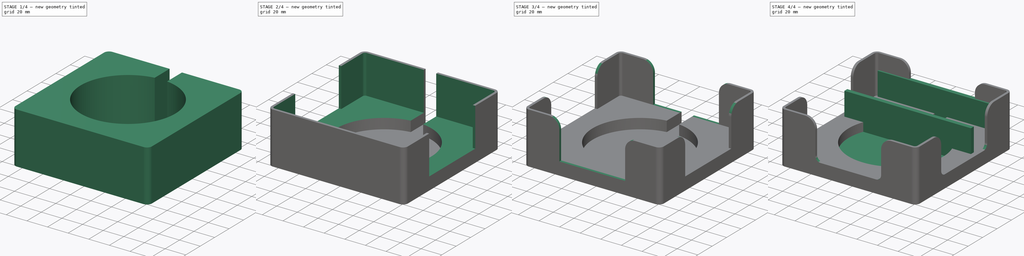
[diagram: build sequence overview — one tinted view per stage of 4, left to right]
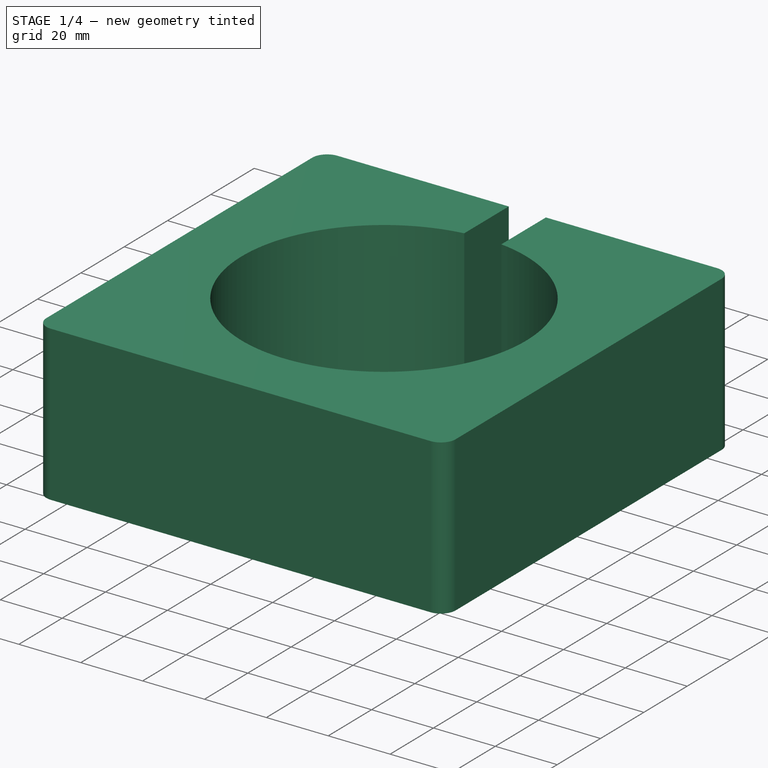
[diagram: stage 1 of 4 — iso view after this stage's code; geometry added in this stage tinted green]
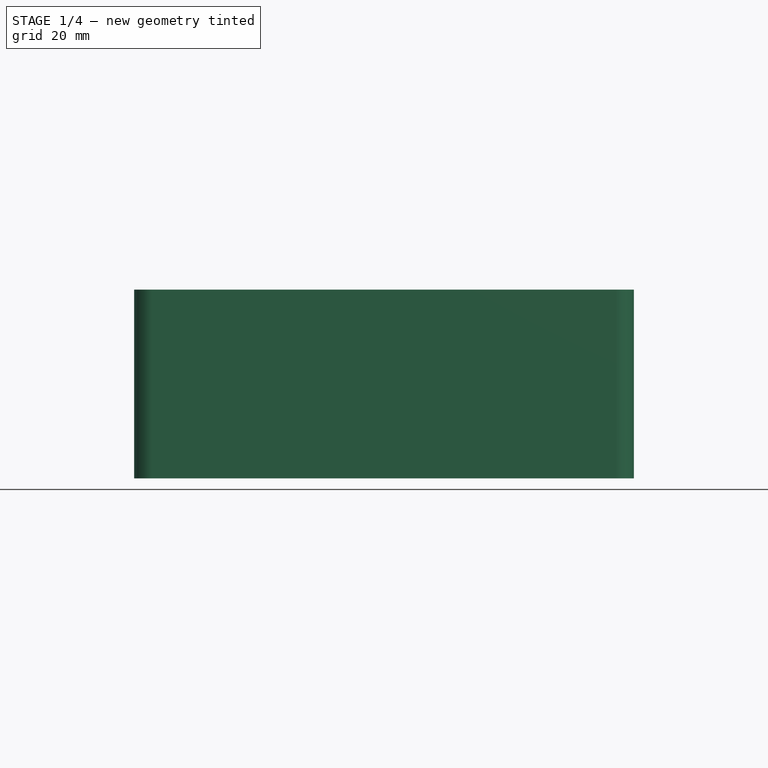
[diagram: stage 1 of 4 — front view after this stage's code; geometry added in this stage tinted green]
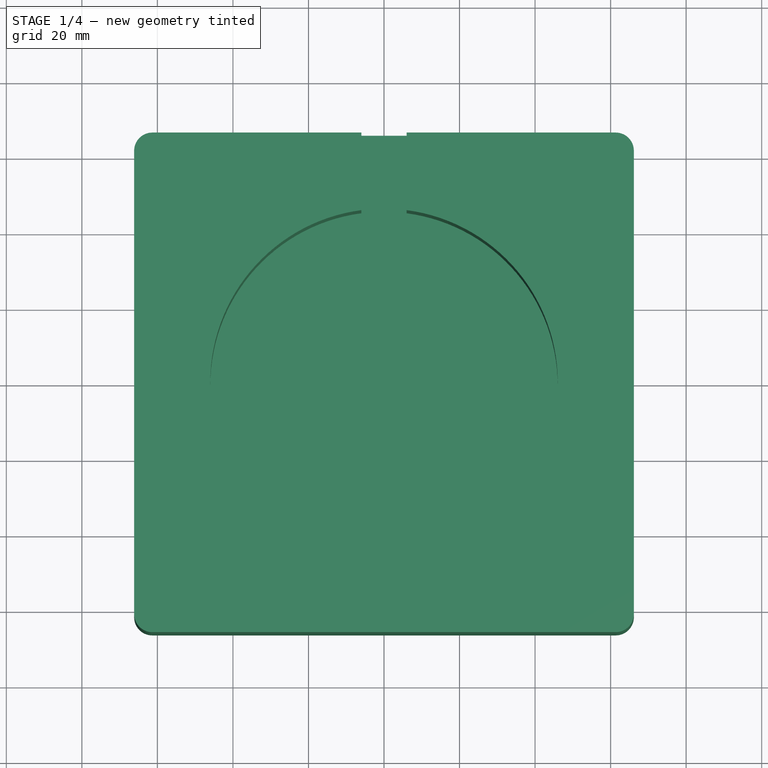
[diagram: stage 1 of 4 — top view after this stage's code; geometry added in this stage tinted green]
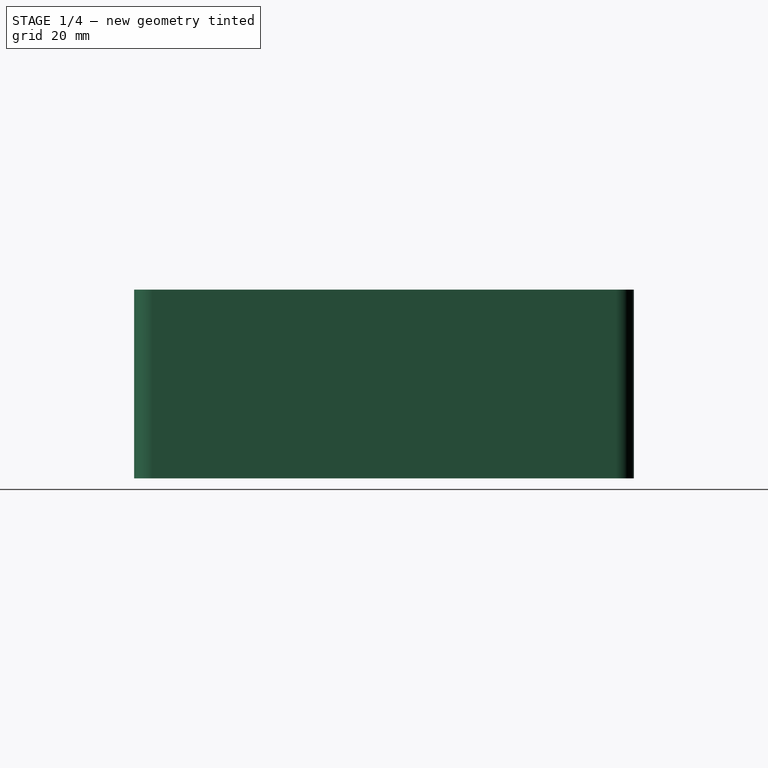
[diagram: stage 1 of 4 — right view after this stage's code; geometry added in this stage tinted green]
FCSTD DOCUMENT  (FreeCAD 0.20RUnknown)
Label: tonie_box_holder
License: All rights reserved
LicenseURL: http://en.wikipedia.org/wiki/All_rights_reserved
objects: Sketcher::SketchObject×9, PartDesign::Pocket×6, PartDesign::Pad×3, PartDesign::Body×2, PartDesign::Fillet×2, Spreadsheet::Sheet×1
note: 33 computed .brp shape members not serialized (recipe doc carries the construction recipe); baked Part::Feature solids carry a one-line shape summary decoded from their .brp

FEATURE [Spreadsheet::Sheet] Spreadsheet  label="params"
  cells = A1=tonie_box_size; B1(tonie_box_size)=127.5; A2=charger_bottom_dia; B2(charger_bottom_dia)=92; A3=charger_bottom_height; B3(charger_bottom_height)=10; A4=charger_cable_shaft_width; B4(charger_cable_shaft_width)=12; A5=wall_width; B5(wall_width)=2.4; A6=total_height; B6(total_height)=50; A7=inset_m3_depth; B7(inset_m3_depth)=5; A8=inset_m3_drill_dia; B8(inset_m3_drill_dia)=4; A9=inset_rect_size; B9(inset_rect_size)=100; A10=table_depth; B10(table_depth)=4; A11=table_support_gap; B11(table_support_gap)=42; A12=table_support_width; B12(table_support_width)=4; A13=table_support_depth; B13(table_support_depth)=35
FEATURE [Sketcher::SketchObject] Sketch
  FullyConstrained = true
  MapMode = 5
  Support = -> [XY_Plane]
  expr: Constraints[19] = <<params>>.tonie_box_size + <<params>>.wall_width * 2
  expr: Constraints[20] = <<params>>.tonie_box_size + 2 * <<params>>.wall_width
  expr: Constraints[21] = <<params>>.tonie_box_size / 2 + <<params>>.wall_width
  expr: Constraints[22] = <<params>>.tonie_box_size / 2 + <<params>>.wall_width
  sketch-geometry (10):
    g0: ArcOfCircle CenterX=-61.35 CenterY=61.35 CenterZ=0 NormalX=0 NormalY=0 NormalZ=1 AngleXU=0 Radius=4.8 StartAngle=1.5708 EndAngle=3.14159
    g1: LineSegment StartX=-61.35 StartY=66.15 StartZ=0 EndX=61.35 EndY=66.15 EndZ=0
    g2: ArcOfCircle CenterX=61.35 CenterY=61.35 CenterZ=0 NormalX=0 NormalY=0 NormalZ=1 AngleXU=0 Radius=4.8 StartAngle=0 EndAngle=1.5708
    g3: LineSegment StartX=66.15 StartY=61.35 StartZ=0 EndX=66.15 EndY=-61.35 EndZ=0
    g4: ArcOfCircle CenterX=61.35 CenterY=-61.35 CenterZ=0 NormalX=0 NormalY=0 NormalZ=1 AngleXU=0 Radius=4.8 StartAngle=4.71239 EndAngle=6.28319
    g5: LineSegment StartX=61.35 StartY=-66.15 StartZ=0 EndX=-61.35 EndY=-66.15 EndZ=0
    g6: ArcOfCircle CenterX=-61.35 CenterY=-61.35 CenterZ=0 NormalX=0 NormalY=0 NormalZ=1 AngleXU=0 Radius=4.8 StartAngle=3.14159 EndAngle=4.71239
    g7: LineSegment StartX=-66.15 StartY=-61.35 StartZ=0 EndX=-66.15 EndY=61.35 EndZ=0
    g8: GeomPoint X=-66.15 Y=66.15 Z=0
    g9: GeomPoint X=66.15 Y=-66.15 Z=0
  constraints (24):
    c: Tangent(g0,g1) = 1.5708
    c: Tangent(g1,g2) = 1.5708
    c: Tangent(g2,g3) = 1.5708
    c: Tangent(g3,g4) = 1.5708
    c: Tangent(g4,g5) = 1.5708
    c: Tangent(g5,g6) = 1.5708
    c: Tangent(g6,g7) = 1.5708
    c: Tangent(g7,g0) = 1.5708
    c: Horizontal(g1)
    c: Horizontal(g5)
    c: Vertical(g3)
    c: Vertical(g7)
    c: Equal(g0,g2)
    c: Equal(g2,g4)
    c: Equal(g4,g6)
    c: PointOnObject(g8,g1)
    c: PointOnObject(g8,g7)
    c: PointOnObject(g9,g3)
    c: PointOnObject(g9,g5)
    c: DistanceX(g0,g2) = 132.3
    c: DistanceY(g4,g1) = 132.3
    c: DistanceX(g6,g-1) = 66.15
    c: DistanceY(g-1,g1) = 66.15
    c: DistanceY(g5,g6) = 4.8
FEATURE [PartDesign::Pad] Pad  label="main_block"
  Direction = (0,0,1)
  Length = 50
  Length2 = 10
  Profile = -> Sketch
  ReferenceAxis = -> Sketch [N_Axis]
  Type = 0
  expr: Length = <<params>>.total_height
FEATURE [Sketcher::SketchObject] Sketch001
  AttachmentOffset = pos=(0,0,2.4) rot=(0,0,1;0rad)
  FullyConstrained = true
  MapMode = 5
  Placement = pos=(0,0,2.4) rot=(0,0,1;0rad)
  Support = -> [XY_Plane]
  expr: .AttachmentOffset.Base.z = <<params>>.wall_width
  expr: Constraints[1] = <<params>>.charger_bottom_dia
  sketch-geometry (1):
    g0: Circle CenterX=0 CenterY=0 CenterZ=0 NormalX=0 NormalY=0 NormalZ=1 AngleXU=0 Radius=46
  constraints (2):
    c: Coincident(g0,g-1)
    c: Diameter(g0) = 92
FEATURE [PartDesign::Pocket] Pocket  label="charger_cutout"
  BaseFeature = -> Pad
  Direction = (0,0,-1)
  Length = 5
  Length2 = 5
  Profile = -> Sketch001
  ReferenceAxis = -> Sketch001 [N_Axis]
  Reversed = true
  Type = 1
FEATURE [Sketcher::SketchObject] Sketch002
  AttachmentOffset = pos=(0,0,2.4) rot=(0,0,1;0rad)
  FullyConstrained = true
  MapMode = 5
  Placement = pos=(0,0,2.4) rot=(0,0,1;0rad)
  Support = -> [XY_Plane]
  expr: .AttachmentOffset.Base.z = <<params>>.wall_width
  expr: Constraints[10] = <<params>>.tonie_box_size / 2 + <<params>>.wall_width
  expr: Constraints[11] = <<params>>.charger_cable_shaft_width / 2
  expr: Constraints[9] = <<params>>.charger_cable_shaft_width
  sketch-geometry (4):
    g0: LineSegment StartX=-6 StartY=0 StartZ=0 EndX=6 EndY=0 EndZ=0
    g1: LineSegment StartX=6 StartY=0 StartZ=0 EndX=6 EndY=66.15 EndZ=0
    g2: LineSegment StartX=6 StartY=66.15 StartZ=0 EndX=-6 EndY=66.15 EndZ=0
    g3: LineSegment StartX=-6 StartY=66.15 StartZ=0 EndX=-6 EndY=0 EndZ=0
  constraints (12):
    c: Coincident(g0,g1)
    c: Coincident(g1,g2)
    c: Coincident(g2,g3)
    c: Coincident(g3,g0)
    c: Horizontal(g0)
    c: Horizontal(g2)
    c: Vertical(g1)
    c: Vertical(g3)
    c: PointOnObject(g0,g-1)
    c: DistanceX(g2,g1) = 12
    c: DistanceY(g0,g1) = 66.15
    c: DistanceX(g-1,g0) = 6
FEATURE [PartDesign::Pocket] Pocket001  label="cable_shaft_cutout"
  BaseFeature = -> Pocket
  Direction = (0,0,-1)
  Length = 5
  Length2 = 5
  Profile = -> Sketch002
  ReferenceAxis = -> Sketch002 [N_Axis]
  Reversed = true
  Type = 1
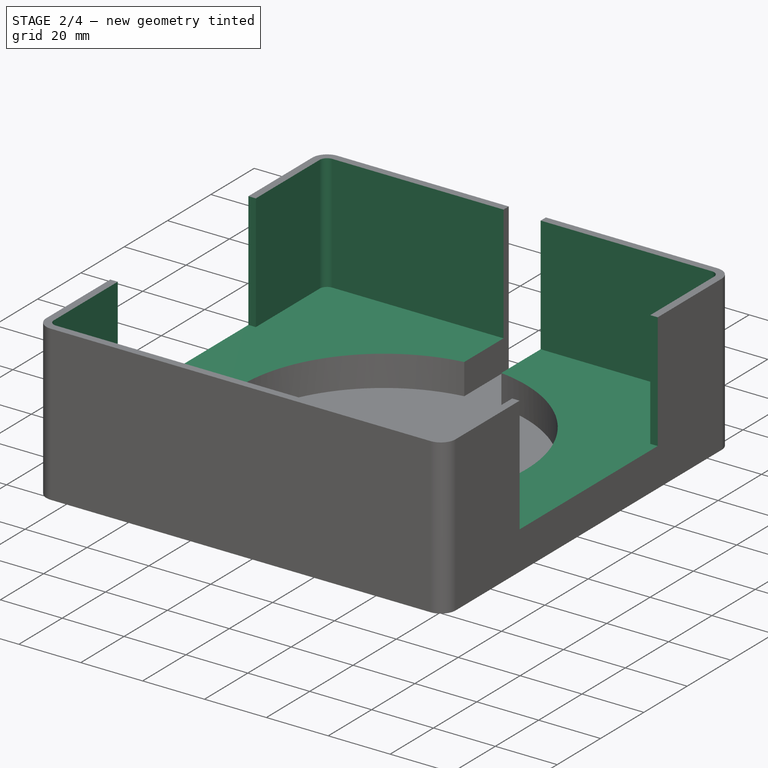
[diagram: stage 2 of 4 — iso view after this stage's code; geometry added in this stage tinted green]
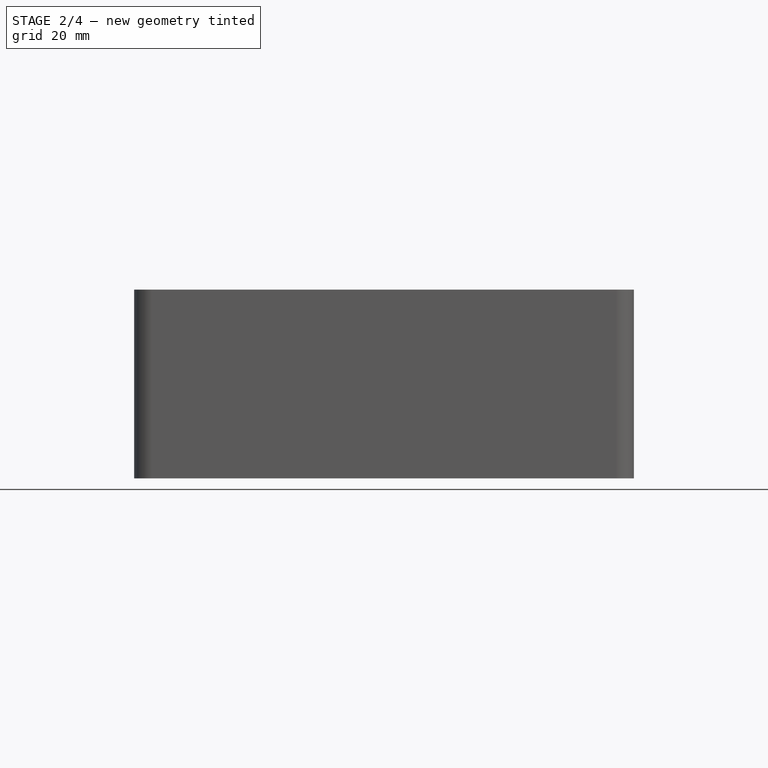
[diagram: stage 2 of 4 — front view after this stage's code; geometry added in this stage tinted green]
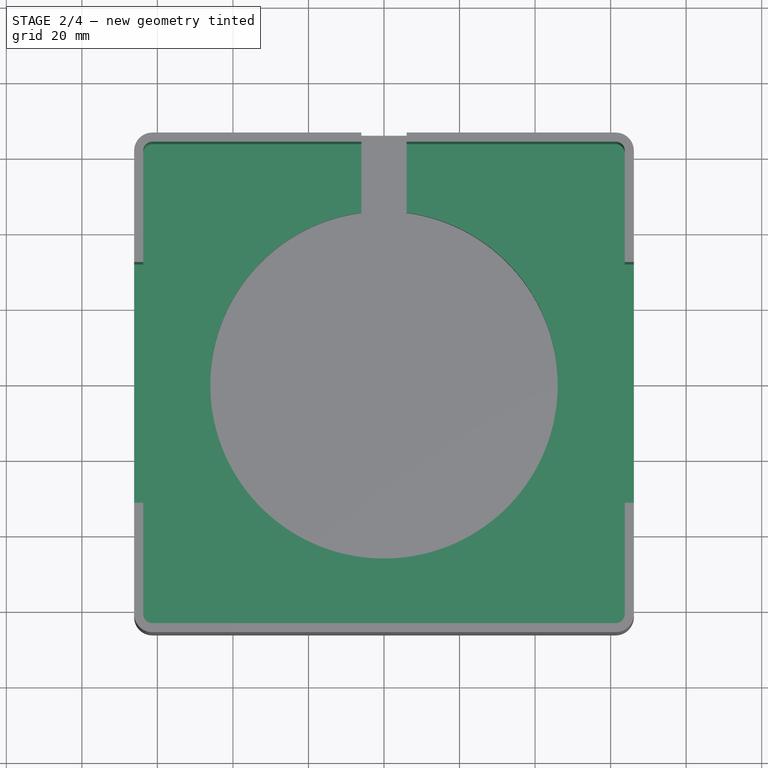
[diagram: stage 2 of 4 — top view after this stage's code; geometry added in this stage tinted green]
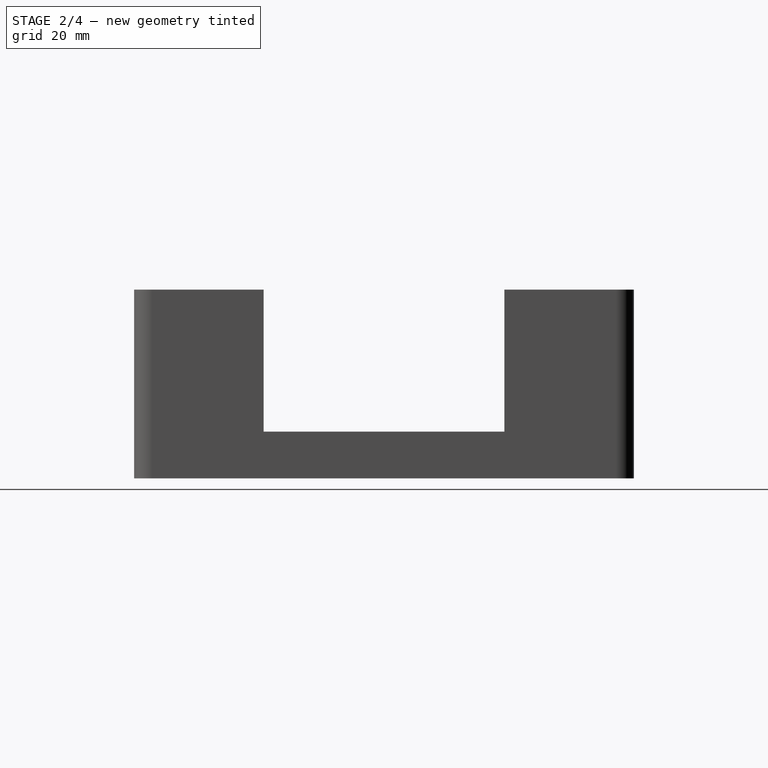
[diagram: stage 2 of 4 — right view after this stage's code; geometry added in this stage tinted green]
FEATURE [Sketcher::SketchObject] Sketch003
  AttachmentOffset = pos=(0,0,12.4) rot=(0,0,1;0rad)
  FullyConstrained = true
  MapMode = 5
  Placement = pos=(0,0,12.4) rot=(0,0,1;0rad)
  Support = -> [XY_Plane]
  expr: .AttachmentOffset.Base.z = <<params>>.wall_width + <<params>>.charger_bottom_height
  expr: Constraints[19] = <<params>>.tonie_box_size
  expr: Constraints[20] = <<params>>.tonie_box_size
  expr: Constraints[21] = <<params>>.tonie_box_size / 2
  expr: Constraints[22] = <<params>>.tonie_box_size / 2
  expr: Constraints[23] = <<params>>.wall_width
  sketch-geometry (10):
    g0: ArcOfCircle CenterX=-61.35 CenterY=61.35 CenterZ=0 NormalX=0 NormalY=0 NormalZ=1 AngleXU=0 Radius=2.4 StartAngle=1.5708 EndAngle=3.14159
    g1: LineSegment StartX=-61.35 StartY=63.75 StartZ=0 EndX=61.35 EndY=63.75 EndZ=0
    g2: ArcOfCircle CenterX=61.35 CenterY=61.35 CenterZ=0 NormalX=0 NormalY=0 NormalZ=1 AngleXU=0 Radius=2.4 StartAngle=0 EndAngle=1.5708
    g3: LineSegment StartX=63.75 StartY=61.35 StartZ=0 EndX=63.75 EndY=-61.35 EndZ=0
    g4: ArcOfCircle CenterX=61.35 CenterY=-61.35 CenterZ=0 NormalX=0 NormalY=0 NormalZ=1 AngleXU=0 Radius=2.4 StartAngle=4.71239 EndAngle=6.28319
    g5: LineSegment StartX=61.35 StartY=-63.75 StartZ=0 EndX=-61.35 EndY=-63.75 EndZ=0
    g6: ArcOfCircle CenterX=-61.35 CenterY=-61.35 CenterZ=0 NormalX=0 NormalY=0 NormalZ=1 AngleXU=0 Radius=2.4 StartAngle=3.14159 EndAngle=4.71239
    g7: LineSegment StartX=-63.75 StartY=-61.35 StartZ=0 EndX=-63.75 EndY=61.35 EndZ=0
    g8: GeomPoint X=-63.75 Y=63.75 Z=0
    g9: GeomPoint X=63.75 Y=-63.75 Z=0
  constraints (24):
    c: Tangent(g0,g1) = 1.5708
    c: Tangent(g1,g2) = 1.5708
    c: Tangent(g2,g3) = 1.5708
    c: Tangent(g3,g4) = 1.5708
    c: Tangent(g4,g5) = 1.5708
    c: Tangent(g5,g6) = 1.5708
    c: Tangent(g6,g7) = 1.5708
    c: Tangent(g7,g0) = 1.5708
    c: Horizontal(g1)
    c: Horizontal(g5)
    c: Vertical(g3)
    c: Vertical(g7)
    c: Equal(g0,g2)
    c: Equal(g2,g4)
    c: Equal(g4,g6)
    c: PointOnObject(g8,g1)
    c: PointOnObject(g8,g7)
    c: PointOnObject(g9,g3)
    c: PointOnObject(g9,g5)
    c: DistanceY(g4,g1) = 127.5
    c: DistanceX(g0,g2) = 127.5
    c: DistanceY(g-1,g1) = 63.75
    c: DistanceX(g-1,g2) = 63.75
    c: DistanceY(g0,g0) = 2.4
FEATURE [PartDesign::Pocket] Pocket002  label="tonie_box_cutout"
  BaseFeature = -> Pocket001
  Direction = (0,0,-1)
  Length = 5
  Length2 = 5
  Profile = -> Sketch003
  ReferenceAxis = -> Sketch003 [N_Axis]
  Reversed = true
  Type = 1
FEATURE [Sketcher::SketchObject] Sketch004
  FullyConstrained = true
  MapMode = 5
  Support = -> [XY_Plane]
  expr: Constraints[10] = <<params>>.inset_rect_size
  expr: Constraints[13] = <<params>>.inset_m3_drill_dia
  sketch-geometry (9):
    g0: LineSegment StartX=50 StartY=-50 StartZ=0 EndX=50 EndY=50 EndZ=0
    g1: LineSegment StartX=50 StartY=50 StartZ=0 EndX=-50 EndY=50 EndZ=0
    g2: LineSegment StartX=-50 StartY=50 StartZ=0 EndX=-50 EndY=-50 EndZ=0
    g3: LineSegment StartX=-50 StartY=-50 StartZ=0 EndX=50 EndY=-50 EndZ=0
    g4: GeomPoint X=0 Y=0 Z=0
    g5: Circle CenterX=-50 CenterY=50 CenterZ=0 NormalX=0 NormalY=0 NormalZ=1 AngleXU=0 Radius=2
    g6: Circle CenterX=50 CenterY=50 CenterZ=0 NormalX=0 NormalY=0 NormalZ=1 AngleXU=0 Radius=2
    g7: Circle CenterX=50 CenterY=-50 CenterZ=0 NormalX=0 NormalY=0 NormalZ=1 AngleXU=0 Radius=2
    g8: Circle CenterX=-50 CenterY=-50 CenterZ=0 NormalX=0 NormalY=0 NormalZ=1 AngleXU=0 Radius=2
  constraints (20):
    c: Coincident(g0,g1)
    c: Coincident(g1,g2)
    c: Coincident(g2,g3)
    c: Coincident(g3,g0)
    c: Horizontal(g1)
    c: Horizontal(g3)
    c: Vertical(g0)
    c: Vertical(g2)
    c: Symmetric(g1,g0,g4)
    c: Coincident(g4,g-1)
    c: Distance(g1) = 100
    c: Equal(g1,g2)
    c: Coincident(g5,g1)
    c: Diameter(g5) = 4
    c: Coincident(g6,g0)
    c: Coincident(g7,g0)
    c: Coincident(g8,g2)
    c: Equal(g5,g8)
    c: Equal(g5,g7)
    c: Equal(g5,g6)
FEATURE [PartDesign::Pocket] Pocket003  label="insets"
  BaseFeature = -> Pocket002
  Direction = (0,0,-1)
  Length = 5
  Length2 = 5
  Profile = -> Sketch004
  ReferenceAxis = -> Sketch004 [N_Axis]
  Reversed = true
  Type = 0
  expr: Length = <<params>>.inset_m3_depth
FEATURE [PartDesign::Body] Body001  label="bed_attachement"
  Group = -> [Sketch005,Pad001,Sketch006,Pad002]
  Origin = -> Origin001
  Tip = -> Pad002
FEATURE [Sketcher::SketchObject] Sketch007
  AttachmentOffset = pos=(0,0,12.4) rot=(0,0,1;0rad)
  FullyConstrained = true
  MapMode = 5
  Placement = pos=(0,0,12.4) rot=(0,0,1;0rad)
  Support = -> [XY_Plane]
  expr: .AttachmentOffset.Base.z = <<params>>.wall_width + <<params>>.charger_bottom_height
  expr: Constraints[10] = <<params>>.tonie_box_size / 2
  expr: Constraints[11] = <<params>>.tonie_box_size * 1.2
  sketch-geometry (5):
    g0: LineSegment StartX=76.5 StartY=-31.875 StartZ=0 EndX=76.5 EndY=31.875 EndZ=0
    g1: LineSegment StartX=76.5 StartY=31.875 StartZ=0 EndX=-76.5 EndY=31.875 EndZ=0
    g2: LineSegment StartX=-76.5 StartY=31.875 StartZ=0 EndX=-76.5 EndY=-31.875 EndZ=0
    g3: LineSegment StartX=-76.5 StartY=-31.875 StartZ=0 EndX=76.5 EndY=-31.875 EndZ=0
    g4: GeomPoint X=0 Y=0 Z=0
  constraints (12):
    c: Coincident(g0,g1)
    c: Coincident(g1,g2)
    c: Coincident(g2,g3)
    c: Coincident(g3,g0)
    c: Horizontal(g1)
    c: Horizontal(g3)
    c: Vertical(g0)
    c: Vertical(g2)
    c: Symmetric(g1,g0,g4)
    c: Coincident(g4,g-1)
    c: Distance(g0) = 63.75
    c: Distance(g1) = 153
FEATURE [PartDesign::Pocket] Pocket004  label="wall_cutout_1"
  BaseFeature = -> Pocket003
  Direction = (0,0,-1)
  Length = 5
  Length2 = 5
  Profile = -> Sketch007
  ReferenceAxis = -> Sketch007 [N_Axis]
  Reversed = true
  Type = 1
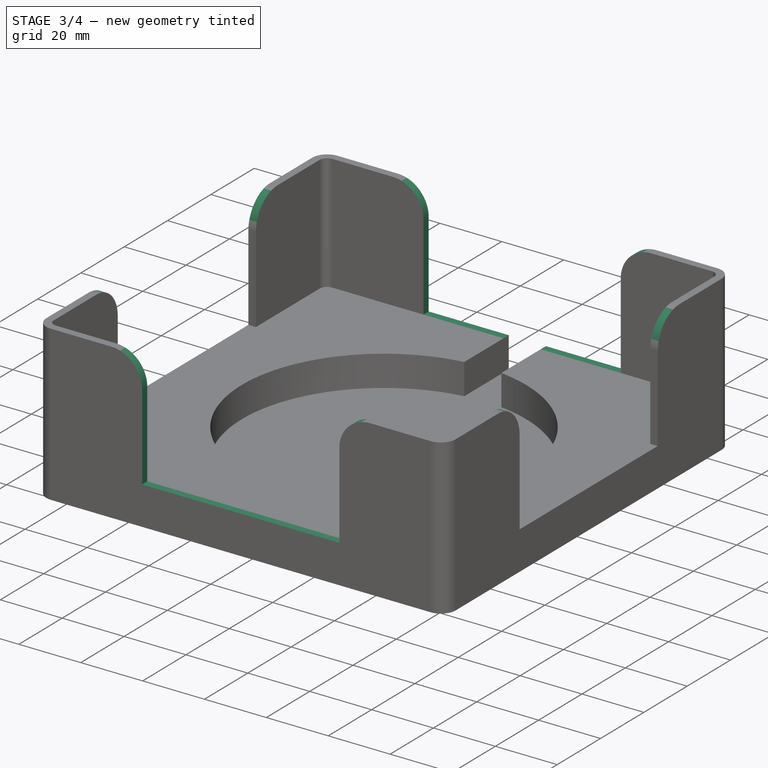
[diagram: stage 3 of 4 — iso view after this stage's code; geometry added in this stage tinted green]
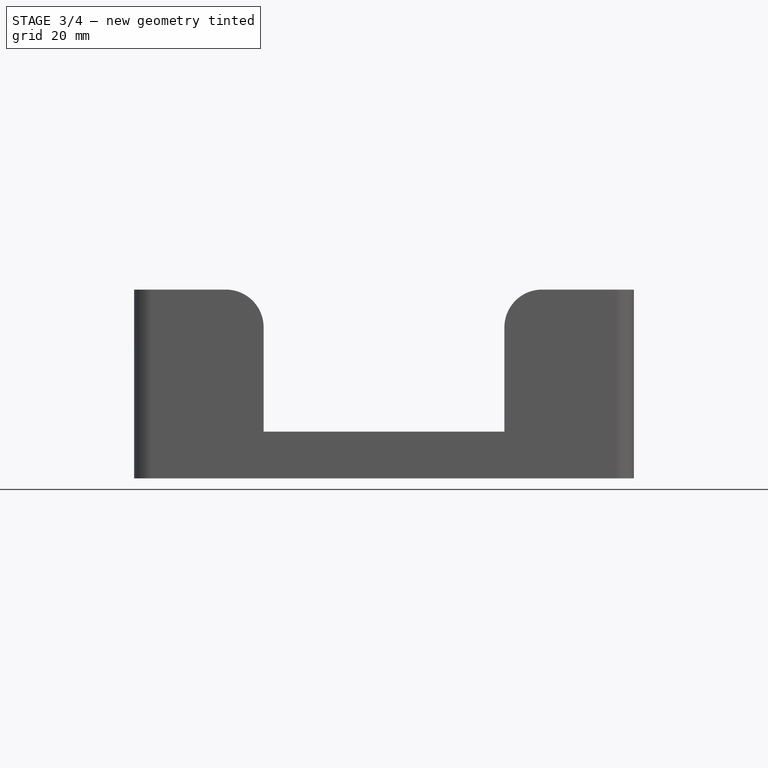
[diagram: stage 3 of 4 — front view after this stage's code; geometry added in this stage tinted green]
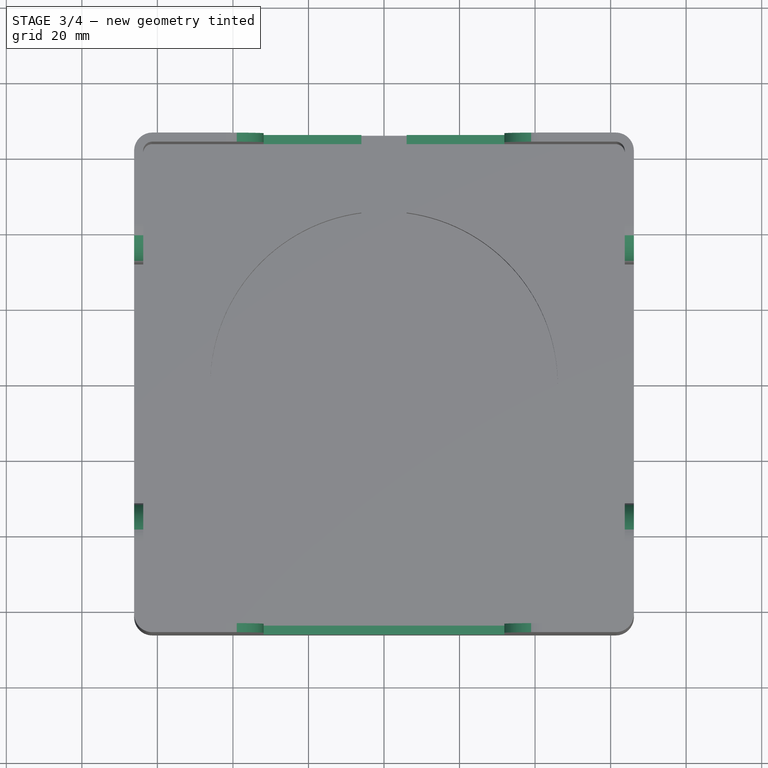
[diagram: stage 3 of 4 — top view after this stage's code; geometry added in this stage tinted green]
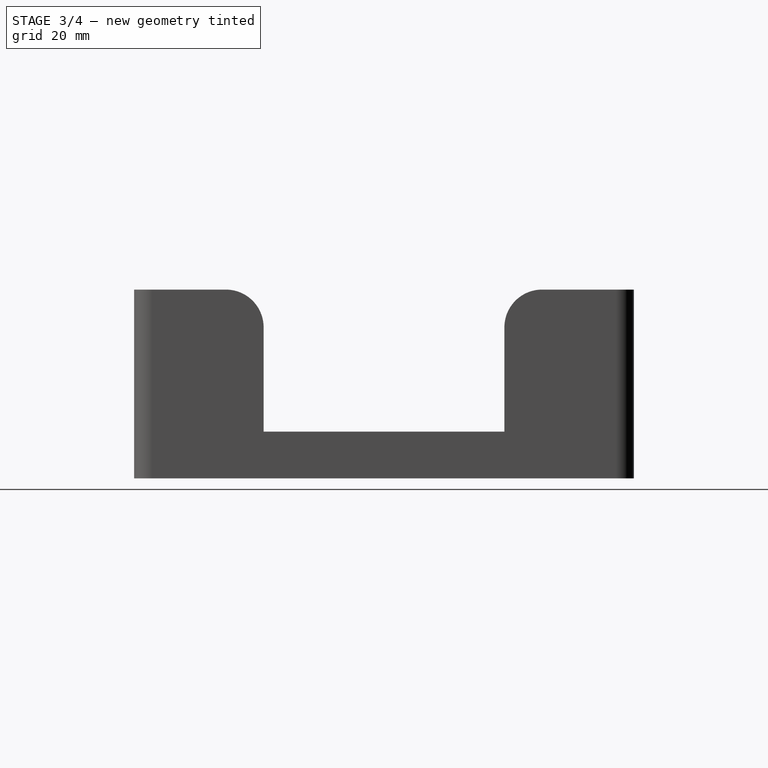
[diagram: stage 3 of 4 — right view after this stage's code; geometry added in this stage tinted green]
FEATURE [Sketcher::SketchObject] Sketch008
  AttachmentOffset = pos=(0,0,12.4) rot=(0,0,1;0rad)
  FullyConstrained = true
  MapMode = 5
  Placement = pos=(0,0,12.4) rot=(0,0,1;0rad)
  Support = -> [XY_Plane]
  expr: .AttachmentOffset.Base.z = <<params>>.wall_width + <<params>>.charger_bottom_height
  expr: Constraints[10] = <<params>>.tonie_box_size * 1.2
  expr: Constraints[11] = <<params>>.tonie_box_size / 2
  sketch-geometry (5):
    g0: LineSegment StartX=31.875 StartY=-76.5 StartZ=0 EndX=31.875 EndY=76.5 EndZ=0
    g1: LineSegment StartX=31.875 StartY=76.5 StartZ=0 EndX=-31.875 EndY=76.5 EndZ=0
    g2: LineSegment StartX=-31.875 StartY=76.5 StartZ=0 EndX=-31.875 EndY=-76.5 EndZ=0
    g3: LineSegment StartX=-31.875 StartY=-76.5 StartZ=0 EndX=31.875 EndY=-76.5 EndZ=0
    g4: GeomPoint X=0 Y=0 Z=0
  constraints (12):
    c: Coincident(g0,g1)
    c: Coincident(g1,g2)
    c: Coincident(g2,g3)
    c: Coincident(g3,g0)
    c: Horizontal(g1)
    c: Horizontal(g3)
    c: Vertical(g0)
    c: Vertical(g2)
    c: Symmetric(g1,g0,g4)
    c: Coincident(g4,g-1)
    c: Distance(g0) = 153
    c: Distance(g1) = 63.75
FEATURE [PartDesign::Pocket] Pocket005
  BaseFeature = -> Pocket004
  Direction = (0,0,-1)
  Length = 5
  Length2 = 5
  Profile = -> Sketch008
  ReferenceAxis = -> Sketch008 [N_Axis]
  Reversed = true
  Type = 1
FEATURE [PartDesign::Fillet] Fillet
  Base = -> Pocket005 [Edge65,Edge36,Edge69,Edge135,Edge134,Edge44,Edge42,Edge32]
  BaseFeature = -> Pocket005
  Radius = 10
  SupportTransform = false
  UseAllEdges = false
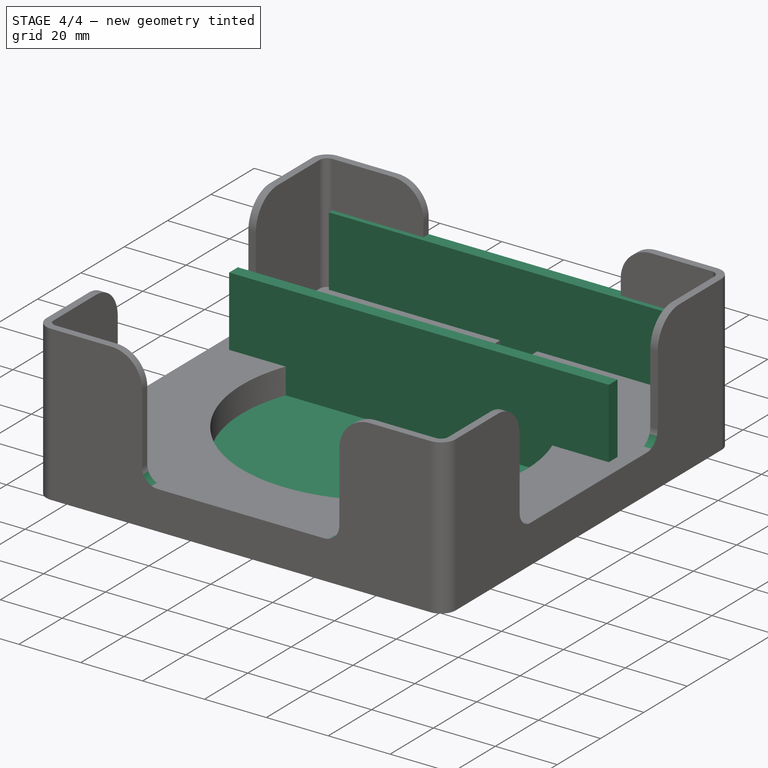
[diagram: stage 4 of 4 — iso view after this stage's code; geometry added in this stage tinted green]
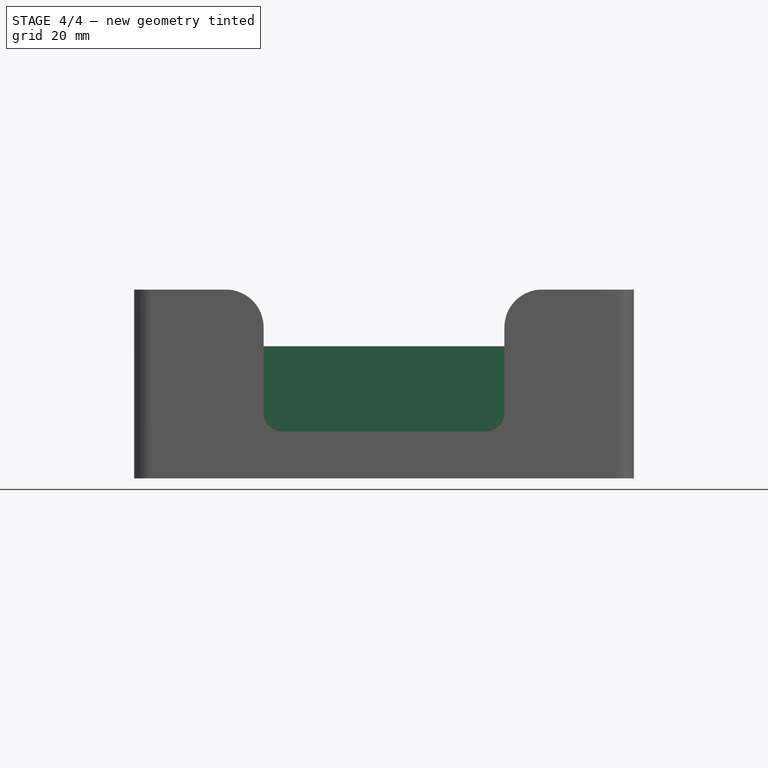
[diagram: stage 4 of 4 — front view after this stage's code; geometry added in this stage tinted green]
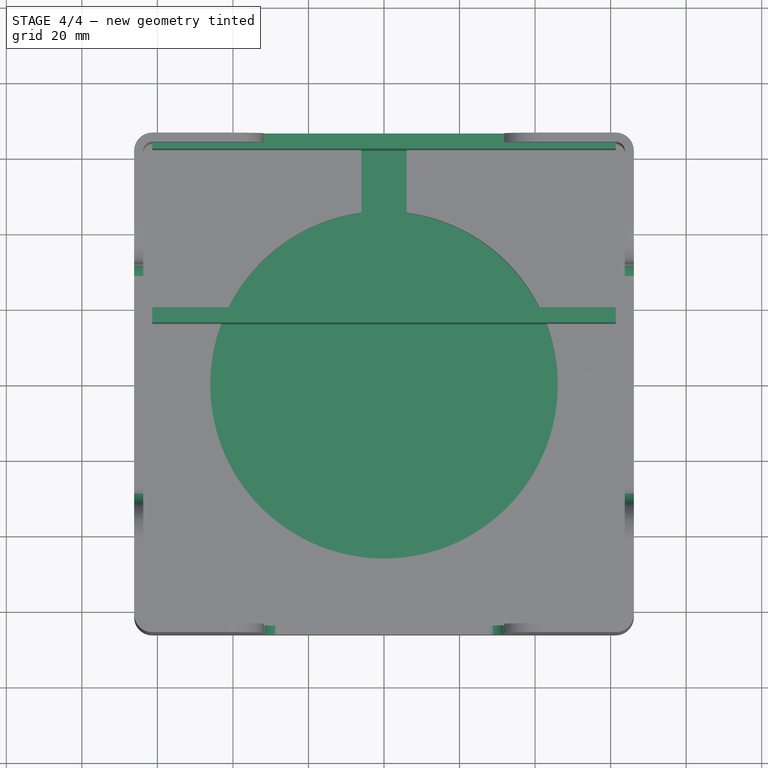
[diagram: stage 4 of 4 — top view after this stage's code; geometry added in this stage tinted green]
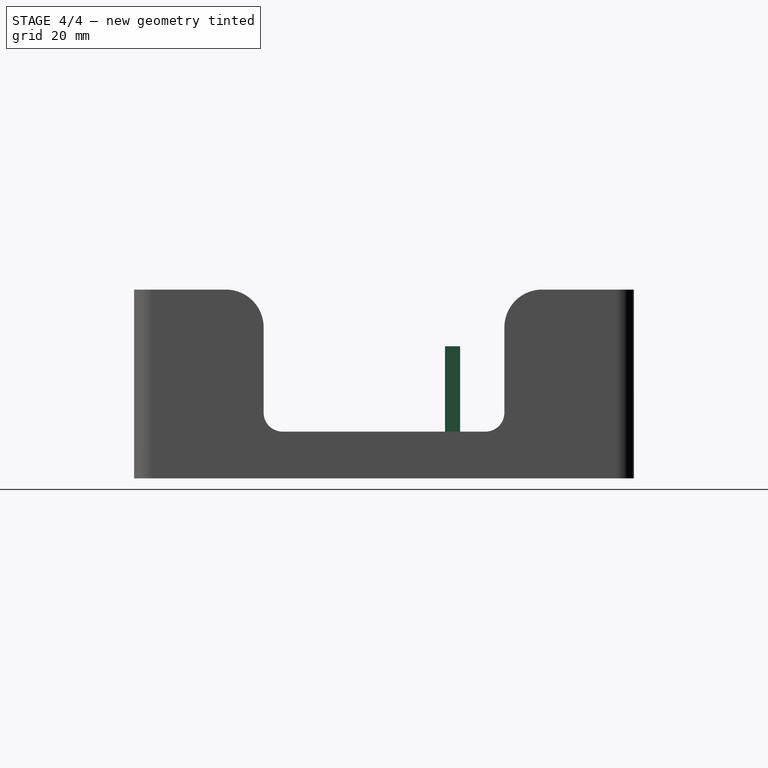
[diagram: stage 4 of 4 — right view after this stage's code; geometry added in this stage tinted green]
FEATURE [Sketcher::SketchObject] Sketch005
  FullyConstrained = true
  MapMode = 5
  Support = -> [XY_Plane001]
  expr: Constraints[19] = <<params>>.tonie_box_size + 2 * <<params>>.wall_width
  expr: Constraints[20] = <<params>>.tonie_box_size + 2 * <<params>>.wall_width
  expr: Constraints[21] = <<params>>.tonie_box_size / 2 + <<params>>.wall_width
  expr: Constraints[22] = <<params>>.wall_width * 2
  expr: Constraints[23] = <<params>>.tonie_box_size / 2 + <<params>>.wall_width
  expr: Constraints[34] = <<params>>.inset_rect_size
  expr: Constraints[43] = <<params>>.inset_m3_drill_dia
  sketch-geometry (19):
    g0: ArcOfCircle CenterX=-61.35 CenterY=61.35 CenterZ=0 NormalX=0 NormalY=0 NormalZ=1 AngleXU=0 Radius=4.8 StartAngle=1.5708 EndAngle=3.14159
    g1: LineSegment StartX=-61.35 StartY=66.15 StartZ=0 EndX=61.35 EndY=66.15 EndZ=0
    g2: ArcOfCircle CenterX=61.35 CenterY=61.35 CenterZ=0 NormalX=0 NormalY=0 NormalZ=1 AngleXU=0 Radius=4.8 StartAngle=0 EndAngle=1.5708
    g3: LineSegment StartX=66.15 StartY=61.35 StartZ=0 EndX=66.15 EndY=-61.35 EndZ=0
    g4: ArcOfCircle CenterX=61.35 CenterY=-61.35 CenterZ=0 NormalX=0 NormalY=0 NormalZ=1 AngleXU=0 Radius=4.8 StartAngle=4.71239 EndAngle=6.28319
    g5: LineSegment StartX=61.35 StartY=-66.15 StartZ=0 EndX=-61.35 EndY=-66.15 EndZ=0
    g6: ArcOfCircle CenterX=-61.35 CenterY=-61.35 CenterZ=0 NormalX=0 NormalY=0 NormalZ=1 AngleXU=0 Radius=4.8 StartAngle=3.14159 EndAngle=4.71239
    g7: LineSegment StartX=-66.15 StartY=-61.35 StartZ=0 EndX=-66.15 EndY=61.35 EndZ=0
    g8: GeomPoint X=-66.15 Y=66.15 Z=0
    g9: GeomPoint X=66.15 Y=-66.15 Z=0
    g10: LineSegment StartX=50 StartY=-50 StartZ=0 EndX=50 EndY=50 EndZ=0
    g11: LineSegment StartX=50 StartY=50 StartZ=0 EndX=-50 EndY=50 EndZ=0
    g12: LineSegment StartX=-50 StartY=50 StartZ=0 EndX=-50 EndY=-50 EndZ=0
    g13: LineSegment StartX=-50 StartY=-50 StartZ=0 EndX=50 EndY=-50 EndZ=0
    g14: GeomPoint X=0 Y=0 Z=0
    g15: Circle CenterX=-50 CenterY=50 CenterZ=0 NormalX=0 NormalY=0 NormalZ=1 AngleXU=0 Radius=2
    g16: Circle CenterX=50 CenterY=50 CenterZ=0 NormalX=0 NormalY=0 NormalZ=1 AngleXU=0 Radius=2
    g17: Circle CenterX=-50 CenterY=-50 CenterZ=0 NormalX=0 NormalY=0 NormalZ=1 AngleXU=0 Radius=2
    g18: Circle CenterX=50 CenterY=-50 CenterZ=0 NormalX=0 NormalY=0 NormalZ=1 AngleXU=0 Radius=2
  constraints (44):
    c: Tangent(g0,g1) = 1.5708
    c: Tangent(g1,g2) = 1.5708
    c: Tangent(g2,g3) = 1.5708
    c: Tangent(g3,g4) = 1.5708
    c: Tangent(g4,g5) = 1.5708
    c: Tangent(g5,g6) = 1.5708
    c: Tangent(g6,g7) = 1.5708
    c: Tangent(g7,g0) = 1.5708
    c: Horizontal(g1)
    c: Horizontal(g5)
    c: Vertical(g3)
    c: Vertical(g7)
    c: Equal(g0,g2)
    c: Equal(g2,g4)
    c: Equal(g4,g6)
    c: PointOnObject(g8,g1)
    c: PointOnObject(g8,g7)
    c: PointOnObject(g9,g3)
    c: PointOnObject(g9,g5)
    c: DistanceX(g0,g2) = 132.3
    c: DistanceY(g5,g0) = 132.3
    c: DistanceY(g-1,g0) = 66.15
    c: DistanceY(g2,g1) = 4.8
    c: DistanceX(g-1,g2) = 66.15
    c: Coincident(g10,g11)
    c: Coincident(g11,g12)
    c: Coincident(g12,g13)
    c: Coincident(g13,g10)
    c: Horizontal(g11)
    c: Horizontal(g13)
    c: Vertical(g10)
    c: Vertical(g12)
    c: Symmetric(g11,g10,g14)
    c: Coincident(g14,g-1)
    c: Distance(g11) = 100
    c: Equal(g11,g12)
    c: Coincident(g15,g11)
    c: Coincident(g16,g10)
    c: Coincident(g17,g12)
    c: Coincident(g18,g10)
    c: Equal(g15,g17)
    c: Equal(g15,g16)
    c: Equal(g15,g18)
    c: Diameter(g15) = 4
FEATURE [PartDesign::Pad] Pad001  label="plate"
  Direction = (0,0,1)
  Length = 4
  Length2 = 10
  Profile = -> Sketch005
  ReferenceAxis = -> Sketch005 [N_Axis]
  Type = 0
  expr: Length = <<params>>.table_depth
FEATURE [Sketcher::SketchObject] Sketch006
  FullyConstrained = true
  MapMode = 5
  Support = -> [XY_Plane001]
  expr: Constraints[10] = <<params>>.tonie_box_size - 2 * <<params>>.wall_width
  expr: Constraints[11] = <<params>>.tonie_box_size / 2 - <<params>>.wall_width
  expr: Constraints[22] = <<params>>.table_support_gap
  expr: Constraints[23] = <<params>>.tonie_box_size / 2 - <<params>>.wall_width
  expr: Constraints[8] = <<params>>.table_support_width
  expr: Constraints[9] = <<params>>.tonie_box_size / 2 + <<params>>.wall_width
  sketch-geometry (8):
    g0: LineSegment StartX=-61.35 StartY=66.15 StartZ=0 EndX=61.35 EndY=66.15 EndZ=0
    g1: LineSegment StartX=61.35 StartY=66.15 StartZ=0 EndX=61.35 EndY=62.15 EndZ=0
    g2: LineSegment StartX=61.35 StartY=62.15 StartZ=0 EndX=-61.35 EndY=62.15 EndZ=0
    g3: LineSegment StartX=-61.35 StartY=62.15 StartZ=0 EndX=-61.35 EndY=66.15 EndZ=0
    g4: LineSegment StartX=-61.35 StartY=20.15 StartZ=0 EndX=61.35 EndY=20.15 EndZ=0
    g5: LineSegment StartX=61.35 StartY=20.15 StartZ=0 EndX=61.35 EndY=16.15 EndZ=0
    g6: LineSegment StartX=61.35 StartY=16.15 StartZ=0 EndX=-61.35 EndY=16.15 EndZ=0
    g7: LineSegment StartX=-61.35 StartY=16.15 StartZ=0 EndX=-61.35 EndY=20.15 EndZ=0
  constraints (24):
    c: Coincident(g0,g1)
    c: Coincident(g1,g2)
    c: Coincident(g2,g3)
    c: Coincident(g3,g0)
    c: Horizontal(g0)
    c: Horizontal(g2)
    c: Vertical(g1)
    c: Vertical(g3)
    c: DistanceY(g1,g0) = 4
    c: DistanceY(g-1,g0) = 66.15
    c: Distance(g0) = 122.7
    c: DistanceX(g-1,g0) = 61.35
    c: Coincident(g4,g5)
    c: Coincident(g5,g6)
    c: Coincident(g6,g7)
    c: Coincident(g7,g4)
    c: Horizontal(g4)
    c: Horizontal(g6)
    c: Vertical(g5)
    c: Vertical(g7)
    c: Equal(g0,g4)
    c: Equal(g5,g1)
    c: DistanceY(g4,g1) = 42
    c: DistanceX(g-1,g4) = 61.35
FEATURE [PartDesign::Pad] Pad002
  BaseFeature = -> Pad001
  Direction = (0,0,1)
  Length = 35
  Length2 = 10
  Profile = -> Sketch006
  ReferenceAxis = -> Sketch006 [N_Axis]
  Type = 0
  expr: Length = <<params>>.table_support_depth
FEATURE [PartDesign::Fillet] Fillet001
  Base = -> Fillet [Edge26,Edge128,Edge59,Edge141,Edge140,Edge153,Edge155,Edge137]
  BaseFeature = -> Fillet
  Radius = 5
  SupportTransform = false
  UseAllEdges = false
FEATURE [PartDesign::Body] Body  label="box_holder"
  Group = -> [Sketch,Pad,Sketch001,Pocket,Sketch002,Pocket001,Sketch003,Pocket002,Sketch004,Pocket003,Sketch007,Pocket004,Sketch008,Pocket005,Fillet,Fillet001]
  Origin = -> Origin
  Tip = -> Fillet001
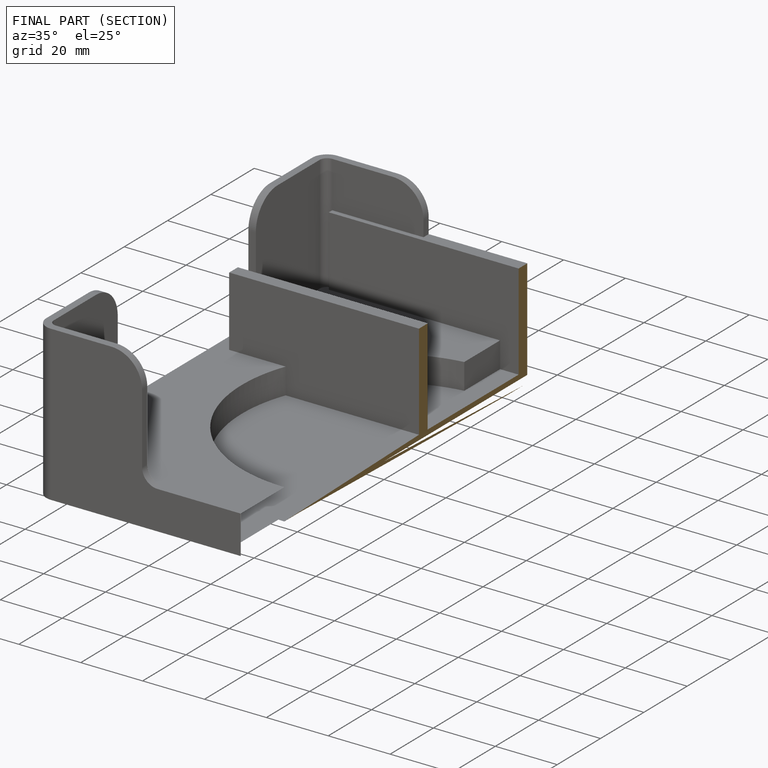
[diagram: finished part — half-section view (interior)]
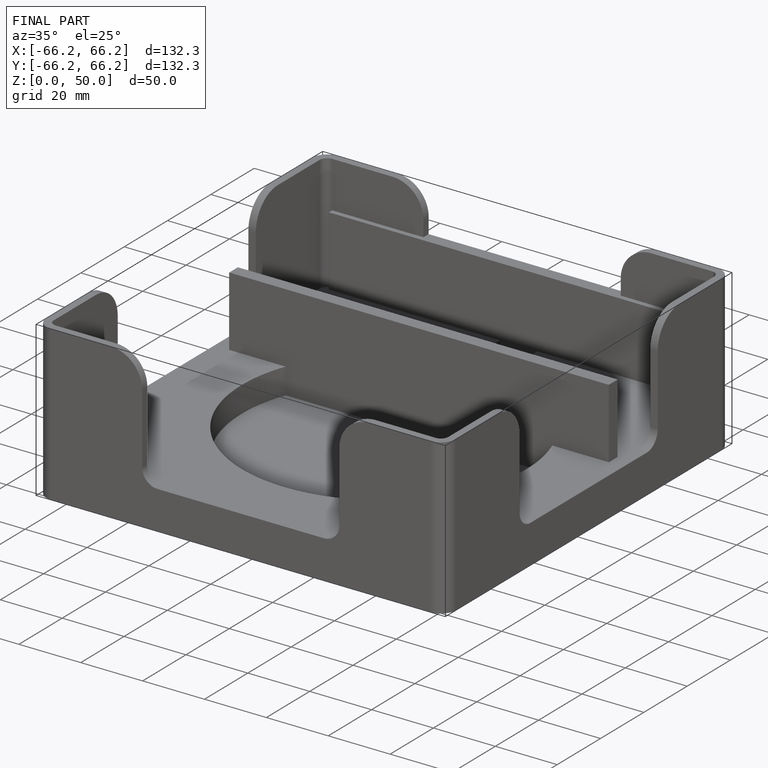
[diagram: finished part — iso view with bounding-box wireframe]
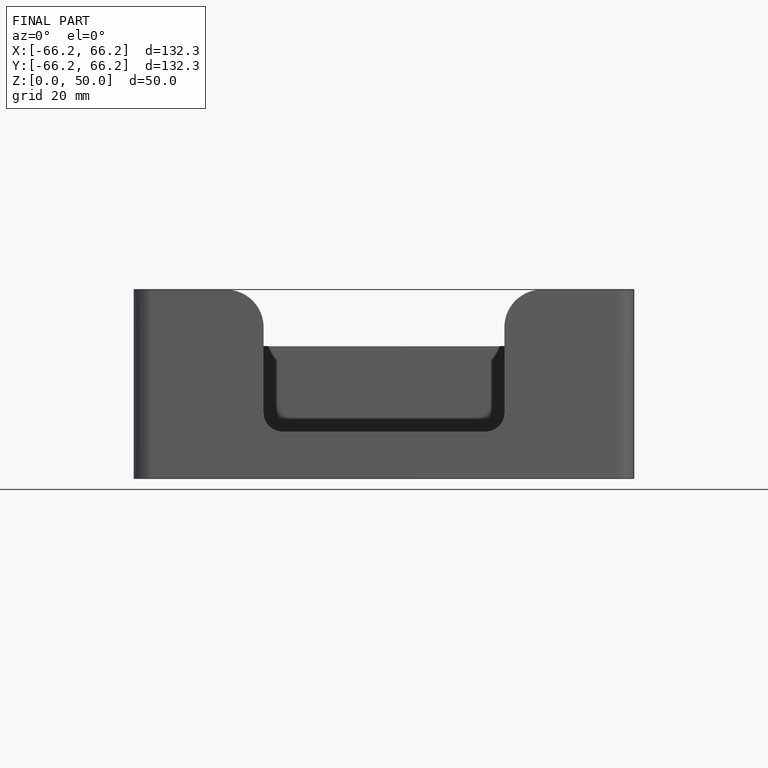
[diagram: finished part — front view with bounding-box wireframe]
